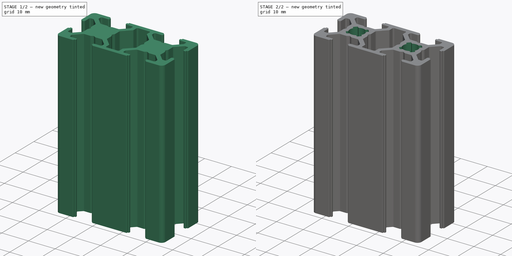
[diagram: build sequence overview — one tinted view per stage of 2, left to right]
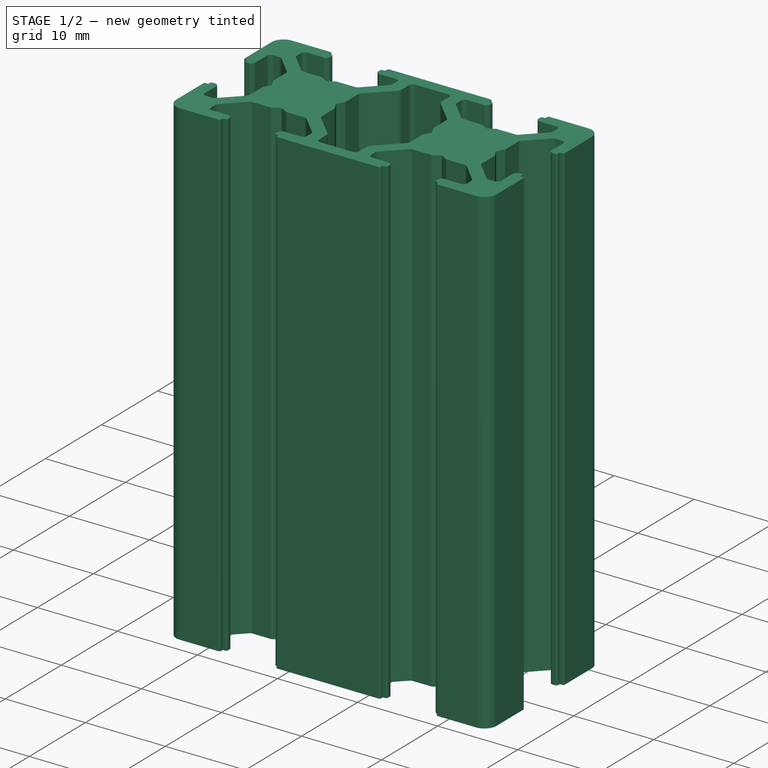
[diagram: stage 1 of 2 — iso view after this stage's code; geometry added in this stage tinted green]
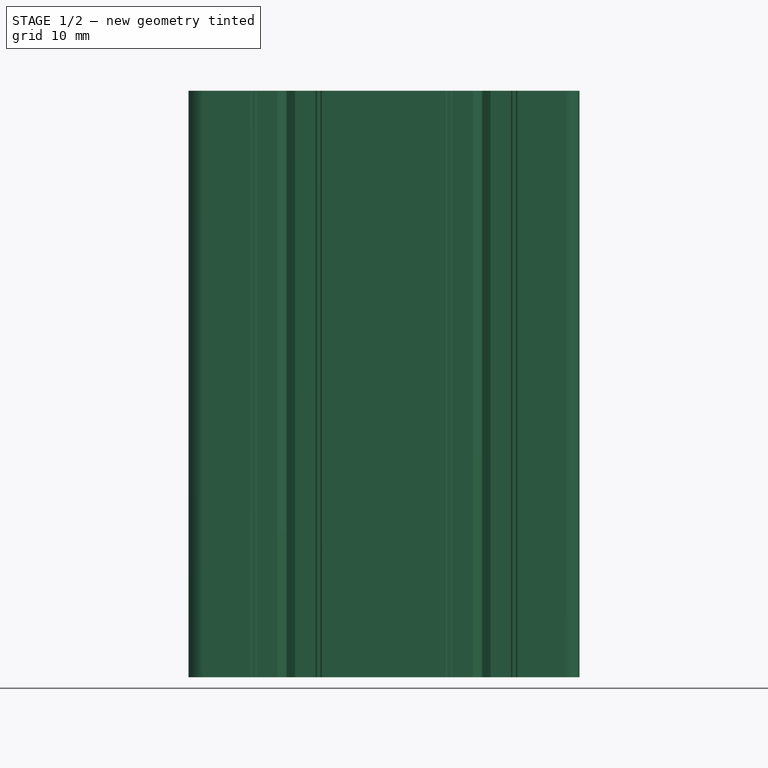
[diagram: stage 1 of 2 — front view after this stage's code; geometry added in this stage tinted green]
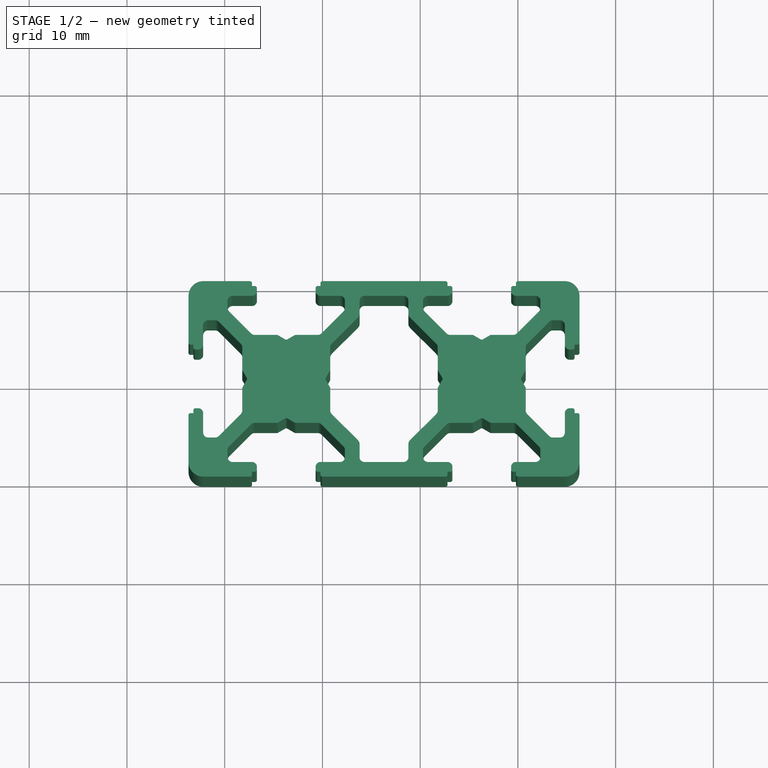
[diagram: stage 1 of 2 — top view after this stage's code; geometry added in this stage tinted green]
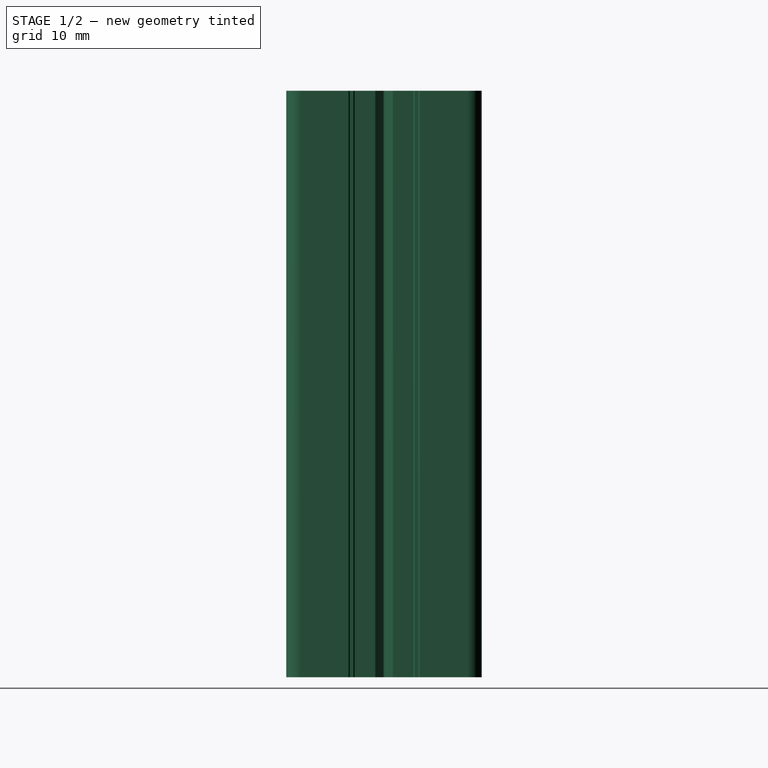
[diagram: stage 1 of 2 — right view after this stage's code; geometry added in this stage tinted green]
FCSTD DOCUMENT  (FreeCAD 0.14R3703 (Git))
Label: brazo_vertical
License: CC-BY 3.0
LicenseURL: http://creativecommons.org/licenses/by/3.0/
objects: Sketcher::SketchObject×4, PartDesign::Pocket×3, PartDesign::Pad×1, Part::Feature×1
note: 13 computed .brp shape members not serialized (recipe doc carries the construction recipe); baked Part::Feature solids carry a one-line shape summary decoded from their .brp

FEATURE [Sketcher::SketchObject] Sketch
  sketch-geometry (200):
    g0: LineSegment StartX=-13.7 StartY=1.5 StartZ=0 EndX=-13.7 EndY=6.3 EndZ=0
    g1: ArcOfCircle CenterX=-12.2 CenterY=1.5 CenterZ=0 NormalX=0 NormalY=0 NormalZ=1 Radius=1.5 StartAngle=3.14159 EndAngle=4.71239
    g2: LineSegment StartX=-7.4 StartY=0 StartZ=0 EndX=-12.2 EndY=1e-12 EndZ=0
    g3: ArcOfCircle CenterX=-7.4 CenterY=0.2 CenterZ=0 NormalX=0 NormalY=0 NormalZ=1 Radius=0.2 StartAngle=4.71239 EndAngle=6.28319
    g4: LineSegment StartX=-7.2 StartY=0.5 StartZ=0 EndX=-7.2 EndY=0.2 EndZ=0
    g5: LineSegment StartX=-6.9 StartY=0.5 StartZ=0 EndX=-7.2 EndY=0.5 EndZ=0
    g6: ArcOfCircle CenterX=-6.9 CenterY=0.7 CenterZ=0 NormalX=0 NormalY=0 NormalZ=1 Radius=0.2 StartAngle=4.71239 EndAngle=6.28319
    g7: LineSegment StartX=-6.7 StartY=1 StartZ=0 EndX=-6.7 EndY=0.7 EndZ=0
    g8: ArcOfCircle CenterX=-7.2 CenterY=1 CenterZ=0 NormalX=0 NormalY=0 NormalZ=1 Radius=0.5 StartAngle=0 EndAngle=1.5708
    g9: LineSegment StartX=-9.2 StartY=1.5 StartZ=0 EndX=-7.2 EndY=1.5 EndZ=0
    g10: ArcOfCircle CenterX=-9.2 CenterY=2 CenterZ=0 NormalX=0 NormalY=0 NormalZ=1 Radius=0.5 StartAngle=3.14159 EndAngle=4.71239
    g11: LineSegment StartX=-9.7 StartY=2.73223 StartZ=0 EndX=-9.7 EndY=2 EndZ=0
    g12: ArcOfCircle CenterX=-9.2 CenterY=2.73223 CenterZ=0 NormalX=0 NormalY=0 NormalZ=1 Radius=0.5 StartAngle=2.35619 EndAngle=3.14159
    g13: LineSegment StartX=-7.28579 StartY=5.35355 StartZ=0 EndX=-9.55355 EndY=3.08579 EndZ=0
    g14: ArcOfCircle CenterX=-6.93223 CenterY=5 CenterZ=0 NormalX=0 NormalY=0 NormalZ=1 Radius=0.5 StartAngle=1.5708 EndAngle=2.35619
    g15: LineSegment StartX=-4.65359 StartY=5.5 StartZ=0 EndX=-6.93223 EndY=5.5 EndZ=0
    g16: ArcOfCircle CenterX=-4.65359 CenterY=5.7 CenterZ=0 NormalX=0 NormalY=0 NormalZ=1 Radius=0.2 StartAngle=4.71239 EndAngle=5.23599
    g17: LineSegment StartX=-3.8 StartY=5.96188 StartZ=0 EndX=-4.55359 EndY=5.5268 EndZ=0
    g18: ArcOfCircle CenterX=-3.7 CenterY=5.78868 CenterZ=0 NormalX=0 NormalY=0 NormalZ=1 Radius=0.2 StartAngle=1.0472 EndAngle=2.0944
    g19: LineSegment StartX=-2.84641 StartY=5.5268 StartZ=0 EndX=-3.6 EndY=5.96188 EndZ=0
    g20: ArcOfCircle CenterX=-2.74641 CenterY=5.7 CenterZ=0 NormalX=0 NormalY=0 NormalZ=1 Radius=0.2 StartAngle=4.18879 EndAngle=4.71239
    g21: LineSegment StartX=-0.467767 StartY=5.5 StartZ=0 EndX=-2.74641 EndY=5.5 EndZ=0
    g22: ArcOfCircle CenterX=-0.467767 CenterY=5 CenterZ=0 NormalX=0 NormalY=0 NormalZ=1 Radius=0.5 StartAngle=0.785398 EndAngle=1.5708
    g23: LineSegment StartX=2.15355 StartY=3.08579 StartZ=0 EndX=-0.114214 EndY=5.35355 EndZ=0
    g24: ArcOfCircle CenterX=1.8 CenterY=2.73223 CenterZ=0 NormalX=0 NormalY=0 NormalZ=1 Radius=0.5 StartAngle=0 EndAngle=0.785398
    g25: LineSegment StartX=2.3 StartY=2 StartZ=0 EndX=2.3 EndY=2.73223 EndZ=0
    g26: ArcOfCircle CenterX=1.8 CenterY=2 CenterZ=0 NormalX=0 NormalY=0 NormalZ=1 Radius=0.5 StartAngle=4.71239 EndAngle=6.28319
    g27: LineSegment StartX=-0.2 StartY=1.5 StartZ=0 EndX=1.8 EndY=1.5 EndZ=0
    g28: ArcOfCircle CenterX=-0.2 CenterY=1 CenterZ=0 NormalX=0 NormalY=0 NormalZ=1 Radius=0.5 StartAngle=1.5708 EndAngle=3.14159
    g29: LineSegment StartX=-0.7 StartY=0.7 StartZ=0 EndX=-0.7 EndY=1 EndZ=0
    g30: ArcOfCircle CenterX=-0.5 CenterY=0.7 CenterZ=0 NormalX=0 NormalY=0 NormalZ=1 Radius=0.2 StartAngle=3.14159 EndAngle=4.71239
    g31: LineSegment StartX=-0.2 StartY=0.5 StartZ=0 EndX=-0.5 EndY=0.5 EndZ=0
    g32: LineSegment StartX=-0.2 StartY=0.2 StartZ=0 EndX=-0.2 EndY=0.5 EndZ=0
    g33: ArcOfCircle CenterX=5e-12 CenterY=0.2 CenterZ=0 NormalX=0 NormalY=0 NormalZ=1 Radius=0.2 StartAngle=3.14159 EndAngle=4.71239
    g34: LineSegment StartX=12.6 StartY=0 StartZ=0 EndX=0 EndY=1e-12 EndZ=0
    g35: ArcOfCircle CenterX=12.6 CenterY=0.2 CenterZ=0 NormalX=0 NormalY=0 NormalZ=1 Radius=0.2 StartAngle=4.71239 EndAngle=6.28319
    g36: LineSegment StartX=12.8 StartY=0.5 StartZ=0 EndX=12.8 EndY=0.2 EndZ=0
    g37: LineSegment StartX=13.1 StartY=0.5 StartZ=0 EndX=12.8 EndY=0.5 EndZ=0
    g38: ArcOfCircle CenterX=13.1 CenterY=0.7 CenterZ=0 NormalX=0 NormalY=0 NormalZ=1 Radius=0.2 StartAngle=4.71239 EndAngle=6.28319
    g39: LineSegment StartX=13.3 StartY=1 StartZ=0 EndX=13.3 EndY=0.7 EndZ=0
    g40: ArcOfCircle CenterX=12.8 CenterY=1 CenterZ=0 NormalX=0 NormalY=0 NormalZ=1 Radius=0.5 StartAngle=0 EndAngle=1.5708
    g41: LineSegment StartX=10.8 StartY=1.5 StartZ=0 EndX=12.8 EndY=1.5 EndZ=0
    g42: ArcOfCircle CenterX=10.8 CenterY=2 CenterZ=0 NormalX=0 NormalY=0 NormalZ=1 Radius=0.5 StartAngle=3.14159 EndAngle=4.71239
    g43: LineSegment StartX=10.3 StartY=2.73223 StartZ=0 EndX=10.3 EndY=2 EndZ=0
    g44: ArcOfCircle CenterX=10.8 CenterY=2.73223 CenterZ=0 NormalX=0 NormalY=0 NormalZ=1 Radius=0.5 StartAngle=2.35619 EndAngle=3.14159
    g45: LineSegment StartX=12.7142 StartY=5.35355 StartZ=0 EndX=10.4464 EndY=3.08579 EndZ=0
    g46: ArcOfCircle CenterX=13.0678 CenterY=5 CenterZ=0 NormalX=0 NormalY=0 NormalZ=1 Radius=0.5 StartAngle=1.5708 EndAngle=2.35619
    g47: LineSegment StartX=15.3464 StartY=5.5 StartZ=0 EndX=13.0678 EndY=5.5 EndZ=0
    g48: ArcOfCircle CenterX=15.3464 CenterY=5.7 CenterZ=0 NormalX=0 NormalY=0 NormalZ=1 Radius=0.2 StartAngle=4.71239 EndAngle=5.23599
    g49: LineSegment StartX=16.2 StartY=5.96188 StartZ=0 EndX=15.4464 EndY=5.5268 EndZ=0
    g50: ArcOfCircle CenterX=16.3 CenterY=5.78868 CenterZ=0 NormalX=0 NormalY=0 NormalZ=1 Radius=0.2 StartAngle=1.0472 EndAngle=2.0944
    g51: LineSegment StartX=17.1536 StartY=5.5268 StartZ=0 EndX=16.4 EndY=5.96188 EndZ=0
    g52: ArcOfCircle CenterX=17.2536 CenterY=5.7 CenterZ=0 NormalX=0 NormalY=0 NormalZ=1 Radius=0.2 StartAngle=4.18879 EndAngle=4.71239
    g53: LineSegment StartX=19.5322 StartY=5.5 StartZ=0 EndX=17.2536 EndY=5.5 EndZ=0
    g54: ArcOfCircle CenterX=19.5322 CenterY=5 CenterZ=0 NormalX=0 NormalY=0 NormalZ=1 Radius=0.5 StartAngle=0.785398 EndAngle=1.5708
    g55: LineSegment StartX=22.1536 StartY=3.08579 StartZ=0 EndX=19.8858 EndY=5.35355 EndZ=0
    g56: ArcOfCircle CenterX=21.8 CenterY=2.73223 CenterZ=0 NormalX=0 NormalY=0 NormalZ=1 Radius=0.5 StartAngle=0 EndAngle=0.785398
    g57: LineSegment StartX=22.3 StartY=2 StartZ=0 EndX=22.3 EndY=2.73223 EndZ=0
    g58: ArcOfCircle CenterX=21.8 CenterY=2 CenterZ=0 NormalX=0 NormalY=0 NormalZ=1 Radius=0.5 StartAngle=4.71239 EndAngle=6.28319
    g59: LineSegment StartX=19.8 StartY=1.5 StartZ=0 EndX=21.8 EndY=1.5 EndZ=0
    g60: ArcOfCircle CenterX=19.8 CenterY=1 CenterZ=0 NormalX=0 NormalY=0 NormalZ=1 Radius=0.5 StartAngle=1.5708 EndAngle=3.14159
    g61: LineSegment StartX=19.3 StartY=0.7 StartZ=0 EndX=19.3 EndY=1 EndZ=0
    g62: ArcOfCircle CenterX=19.5 CenterY=0.7 CenterZ=0 NormalX=0 NormalY=0 NormalZ=1 Radius=0.2 StartAngle=3.14159 EndAngle=4.71239
    g63: LineSegment StartX=19.8 StartY=0.5 StartZ=0 EndX=19.5 EndY=0.5 EndZ=0
    g64: LineSegment StartX=19.8 StartY=0.2 StartZ=0 EndX=19.8 EndY=0.5 EndZ=0
    g65: ArcOfCircle CenterX=20 CenterY=0.2 CenterZ=0 NormalX=0 NormalY=0 NormalZ=1 Radius=0.2 StartAngle=3.14159 EndAngle=4.71239
    g66: LineSegment StartX=24.8 StartY=0 StartZ=0 EndX=20 EndY=1e-12 EndZ=0
    g67: ArcOfCircle CenterX=24.8 CenterY=1.5 CenterZ=0 NormalX=0 NormalY=0 NormalZ=1 Radius=1.5 StartAngle=4.71239 EndAngle=6.28319
    g68: LineSegment StartX=26.3 StartY=6.3 StartZ=0 EndX=26.3 EndY=1.5 EndZ=0
    g69: ArcOfCircle CenterX=26.1 CenterY=6.3 CenterZ=0 NormalX=0 NormalY=0 NormalZ=1 Radius=0.2 StartAngle=0 EndAngle=1.5708
    g70: LineSegment StartX=25.8 StartY=6.5 StartZ=0 EndX=26.1 EndY=6.5 EndZ=0
    g71: LineSegment StartX=25.8 StartY=6.8 StartZ=0 EndX=25.8 EndY=6.5 EndZ=0
    g72: ArcOfCircle CenterX=25.6 CenterY=6.8 CenterZ=0 NormalX=0 NormalY=0 NormalZ=1 Radius=0.2 StartAngle=0 EndAngle=1.5708
    g73: LineSegment StartX=25.3 StartY=7 StartZ=0 EndX=25.6 EndY=7 EndZ=0
    g74: ArcOfCircle CenterX=25.3 CenterY=6.5 CenterZ=0 NormalX=0 NormalY=0 NormalZ=1 Radius=0.5 StartAngle=1.5708 EndAngle=3.14159
    g75: LineSegment StartX=24.8 StartY=4.5 StartZ=0 EndX=24.8 EndY=6.5 EndZ=0
    g76: ArcOfCircle CenterX=24.3 CenterY=4.5 CenterZ=0 NormalX=0 NormalY=0 NormalZ=1 Radius=0.5 StartAngle=4.71239 EndAngle=6.28319
    g77: LineSegment StartX=23.5678 StartY=4 StartZ=0 EndX=24.3 EndY=4 EndZ=0
    g78: ArcOfCircle CenterX=23.5678 CenterY=4.5 CenterZ=0 NormalX=0 NormalY=0 NormalZ=1 Radius=0.5 StartAngle=3.92699 EndAngle=4.71239
    g79: LineSegment StartX=20.9464 StartY=6.41421 StartZ=0 EndX=23.2142 EndY=4.14645 EndZ=0
    g80: ArcOfCircle CenterX=21.3 CenterY=6.76777 CenterZ=0 NormalX=0 NormalY=0 NormalZ=1 Radius=0.5 StartAngle=3.14159 EndAngle=3.92699
    g81: LineSegment StartX=20.8 StartY=9.04641 StartZ=0 EndX=20.8 EndY=6.76777 EndZ=0
    g82: ArcOfCircle CenterX=20.6 CenterY=9.04641 CenterZ=0 NormalX=0 NormalY=0 NormalZ=1 Radius=0.2 StartAngle=0 EndAngle=0.523599
    g83: LineSegment StartX=20.3381 StartY=9.9 StartZ=0 EndX=20.7732 EndY=9.14641 EndZ=0
    g84: ArcOfCircle CenterX=20.5113 CenterY=10 CenterZ=0 NormalX=0 NormalY=0 NormalZ=1 Radius=0.2 StartAngle=2.61799 EndAngle=3.66519
    g85: LineSegment StartX=20.7732 StartY=10.8536 StartZ=0 EndX=20.3381 EndY=10.1 EndZ=0
    g86: ArcOfCircle CenterX=20.6 CenterY=10.9536 CenterZ=0 NormalX=0 NormalY=0 NormalZ=1 Radius=0.2 StartAngle=5.75959 EndAngle=6.28319
    g87: LineSegment StartX=20.8 StartY=13.2322 StartZ=0 EndX=20.8 EndY=10.9536 EndZ=0
    g88: ArcOfCircle CenterX=21.3 CenterY=13.2322 CenterZ=0 NormalX=0 NormalY=0 NormalZ=1 Radius=0.5 StartAngle=2.35619 EndAngle=3.14159
    g89: LineSegment StartX=23.2142 StartY=15.8536 StartZ=0 EndX=20.9464 EndY=13.5858 EndZ=0
    g90: ArcOfCircle CenterX=23.5678 CenterY=15.5 CenterZ=0 NormalX=0 NormalY=0 NormalZ=1 Radius=0.5 StartAngle=1.5708 EndAngle=2.35619
    g91: LineSegment StartX=24.3 StartY=16 StartZ=0 EndX=23.5678 EndY=16 EndZ=0
    g92: ArcOfCircle CenterX=24.3 CenterY=15.5 CenterZ=0 NormalX=0 NormalY=0 NormalZ=1 Radius=0.5 StartAngle=0 EndAngle=1.5708
    g93: LineSegment StartX=24.8 StartY=13.5 StartZ=0 EndX=24.8 EndY=15.5 EndZ=0
    g94: ArcOfCircle CenterX=25.3 CenterY=13.5 CenterZ=0 NormalX=0 NormalY=0 NormalZ=1 Radius=0.5 StartAngle=3.14159 EndAngle=4.71239
    g95: LineSegment StartX=25.6 StartY=13 StartZ=0 EndX=25.3 EndY=13 EndZ=0
    g96: ArcOfCircle CenterX=25.6 CenterY=13.2 CenterZ=0 NormalX=0 NormalY=0 NormalZ=1 Radius=0.2 StartAngle=4.71239 EndAngle=6.28319
    g97: LineSegment StartX=25.8 StartY=13.5 StartZ=0 EndX=25.8 EndY=13.2 EndZ=0
    g98: LineSegment StartX=26.1 StartY=13.5 StartZ=0 EndX=25.8 EndY=13.5 EndZ=0
    g99: ArcOfCircle CenterX=26.1 CenterY=13.7 CenterZ=0 NormalX=0 NormalY=0 NormalZ=1 Radius=0.2 StartAngle=4.71239 EndAngle=6.28319
    g100: LineSegment StartX=26.3 StartY=18.5 StartZ=0 EndX=26.3 EndY=13.7 EndZ=0
    g101: ArcOfCircle CenterX=24.8 CenterY=18.5 CenterZ=0 NormalX=0 NormalY=0 NormalZ=1 Radius=1.5 StartAngle=0 EndAngle=1.5708
    g102: LineSegment StartX=20 StartY=20 StartZ=0 EndX=24.8 EndY=20 EndZ=0
    g103: ArcOfCircle CenterX=20 CenterY=19.8 CenterZ=0 NormalX=0 NormalY=0 NormalZ=1 Radius=0.2 StartAngle=1.5708 EndAngle=3.14159
    g104: LineSegment StartX=19.8 StartY=19.5 StartZ=0 EndX=19.8 EndY=19.8 EndZ=0
    g105: LineSegment StartX=19.5 StartY=19.5 StartZ=0 EndX=19.8 EndY=19.5 EndZ=0
    g106: ArcOfCircle CenterX=19.5 CenterY=19.3 CenterZ=0 NormalX=0 NormalY=0 NormalZ=1 Radius=0.2 StartAngle=1.5708 EndAngle=3.14159
    g107: LineSegment StartX=19.3 StartY=19 StartZ=0 EndX=19.3 EndY=19.3 EndZ=0
    g108: ArcOfCircle CenterX=19.8 CenterY=19 CenterZ=0 NormalX=0 NormalY=0 NormalZ=1 Radius=0.5 StartAngle=3.14159 EndAngle=4.71239
    g109: LineSegment StartX=21.8 StartY=18.5 StartZ=0 EndX=19.8 EndY=18.5 EndZ=0
    g110: ArcOfCircle CenterX=21.8 CenterY=18 CenterZ=0 NormalX=0 NormalY=0 NormalZ=1 Radius=0.5 StartAngle=0 EndAngle=1.5708
    g111: LineSegment StartX=22.3 StartY=17.2678 StartZ=0 EndX=22.3 EndY=18 EndZ=0
    g112: ArcOfCircle CenterX=21.8 CenterY=17.2678 CenterZ=0 NormalX=0 NormalY=0 NormalZ=1 Radius=0.5 StartAngle=5.49779 EndAngle=6.28319
    g113: LineSegment StartX=19.8858 StartY=14.6464 StartZ=0 EndX=22.1536 EndY=16.9142 EndZ=0
    g114: ArcOfCircle CenterX=19.5322 CenterY=15 CenterZ=0 NormalX=0 NormalY=0 NormalZ=1 Radius=0.5 StartAngle=4.71239 EndAngle=5.49779
    g115: LineSegment StartX=17.2536 StartY=14.5 StartZ=0 EndX=19.5322 EndY=14.5 EndZ=0
    g116: ArcOfCircle CenterX=17.2536 CenterY=14.3 CenterZ=0 NormalX=0 NormalY=0 NormalZ=1 Radius=0.2 StartAngle=1.5708 EndAngle=2.0944
    g117: LineSegment StartX=16.4 StartY=14.0381 StartZ=0 EndX=17.1536 EndY=14.4732 EndZ=0
    g118: ArcOfCircle CenterX=16.3 CenterY=14.2113 CenterZ=0 NormalX=0 NormalY=0 NormalZ=1 Radius=0.2 StartAngle=4.18879 EndAngle=5.23599
    g119: LineSegment StartX=15.4464 StartY=14.4732 StartZ=0 EndX=16.2 EndY=14.0381 EndZ=0
    g120: ArcOfCircle CenterX=15.3464 CenterY=14.3 CenterZ=0 NormalX=0 NormalY=0 NormalZ=1 Radius=0.2 StartAngle=1.0472 EndAngle=1.5708
    g121: LineSegment StartX=13.0678 StartY=14.5 StartZ=0 EndX=15.3464 EndY=14.5 EndZ=0
    g122: ArcOfCircle CenterX=13.0678 CenterY=15 CenterZ=0 NormalX=0 NormalY=0 NormalZ=1 Radius=0.5 StartAngle=3.92699 EndAngle=4.71239
    g123: LineSegment StartX=10.4464 StartY=16.9142 StartZ=0 EndX=12.7142 EndY=14.6464 EndZ=0
    g124: ArcOfCircle CenterX=10.8 CenterY=17.2678 CenterZ=0 NormalX=0 NormalY=0 NormalZ=1 Radius=0.5 StartAngle=3.14159 EndAngle=3.92699
    g125: LineSegment StartX=10.3 StartY=18 StartZ=0 EndX=10.3 EndY=17.2678 EndZ=0
    g126: ArcOfCircle CenterX=10.8 CenterY=18 CenterZ=0 NormalX=0 NormalY=0 NormalZ=1 Radius=0.5 StartAngle=1.5708 EndAngle=3.14159
    g127: LineSegment StartX=12.8 StartY=18.5 StartZ=0 EndX=10.8 EndY=18.5 EndZ=0
    g128: ArcOfCircle CenterX=12.8 CenterY=19 CenterZ=0 NormalX=0 NormalY=0 NormalZ=1 Radius=0.5 StartAngle=4.71239 EndAngle=6.28319
    g129: LineSegment StartX=13.3 StartY=19.3 StartZ=0 EndX=13.3 EndY=19 EndZ=0
    g130: ArcOfCircle CenterX=13.1 CenterY=19.3 CenterZ=0 NormalX=0 NormalY=0 NormalZ=1 Radius=0.2 StartAngle=0 EndAngle=1.5708
    g131: LineSegment StartX=12.8 StartY=19.5 StartZ=0 EndX=13.1 EndY=19.5 EndZ=0
    g132: LineSegment StartX=12.8 StartY=19.8 StartZ=0 EndX=12.8 EndY=19.5 EndZ=0
    g133: ArcOfCircle CenterX=12.6 CenterY=19.8 CenterZ=0 NormalX=0 NormalY=0 NormalZ=1 Radius=0.2 StartAngle=0 EndAngle=1.5708
    g134: LineSegment StartX=0 StartY=20 StartZ=0 EndX=12.6 EndY=20 EndZ=0
    g135: ArcOfCircle CenterX=0 CenterY=19.8 CenterZ=0 NormalX=0 NormalY=0 NormalZ=1 Radius=0.2 StartAngle=1.5708 EndAngle=3.14159
    g136: LineSegment StartX=-0.2 StartY=19.5 StartZ=0 EndX=-0.2 EndY=19.8 EndZ=0
    g137: LineSegment StartX=-0.5 StartY=19.5 StartZ=0 EndX=-0.2 EndY=19.5 EndZ=0
    g138: ArcOfCircle CenterX=-0.5 CenterY=19.3 CenterZ=0 NormalX=0 NormalY=0 NormalZ=1 Radius=0.2 StartAngle=1.5708 EndAngle=3.14159
    g139: LineSegment StartX=-0.7 StartY=19 StartZ=0 EndX=-0.7 EndY=19.3 EndZ=0
    g140: ArcOfCircle CenterX=-0.2 CenterY=19 CenterZ=0 NormalX=0 NormalY=0 NormalZ=1 Radius=0.5 StartAngle=3.14159 EndAngle=4.71239
    g141: LineSegment StartX=1.8 StartY=18.5 StartZ=0 EndX=-0.2 EndY=18.5 EndZ=0
    g142: ArcOfCircle CenterX=1.8 CenterY=18 CenterZ=0 NormalX=0 NormalY=0 NormalZ=1 Radius=0.5 StartAngle=0 EndAngle=1.5708
    g143: LineSegment StartX=2.3 StartY=17.2678 StartZ=0 EndX=2.3 EndY=18 EndZ=0
    g144: ArcOfCircle CenterX=1.8 CenterY=17.2678 CenterZ=0 NormalX=0 NormalY=0 NormalZ=1 Radius=0.5 StartAngle=5.49779 EndAngle=6.28319
    g145: LineSegment StartX=-0.114214 StartY=14.6464 StartZ=0 EndX=2.15355 EndY=16.9142 EndZ=0
    g146: ArcOfCircle CenterX=-0.467767 CenterY=15 CenterZ=0 NormalX=0 NormalY=0 NormalZ=1 Radius=0.5 StartAngle=4.71239 EndAngle=5.49779
    g147: LineSegment StartX=-2.74641 StartY=14.5 StartZ=0 EndX=-0.467767 EndY=14.5 EndZ=0
    g148: ArcOfCircle CenterX=-2.74641 CenterY=14.3 CenterZ=0 NormalX=0 NormalY=0 NormalZ=1 Radius=0.2 StartAngle=1.5708 EndAngle=2.0944
    g149: LineSegment StartX=-3.6 StartY=14.0381 StartZ=0 EndX=-2.84641 EndY=14.4732 EndZ=0
    g150: ArcOfCircle CenterX=-3.7 CenterY=14.2113 CenterZ=0 NormalX=0 NormalY=0 NormalZ=1 Radius=0.2 StartAngle=4.18879 EndAngle=5.23599
    g151: LineSegment StartX=-4.55359 StartY=14.4732 StartZ=0 EndX=-3.8 EndY=14.0381 EndZ=0
    g152: ArcOfCircle CenterX=-4.65359 CenterY=14.3 CenterZ=0 NormalX=0 NormalY=0 NormalZ=1 Radius=0.2 StartAngle=1.0472 EndAngle=1.5708
    g153: LineSegment StartX=-6.93223 StartY=14.5 StartZ=0 EndX=-4.65359 EndY=14.5 EndZ=0
    g154: ArcOfCircle CenterX=-6.93223 CenterY=15 CenterZ=0 NormalX=0 NormalY=0 NormalZ=1 Radius=0.5 StartAngle=3.92699 EndAngle=4.71239
    g155: LineSegment StartX=-9.55355 StartY=16.9142 StartZ=0 EndX=-7.28579 EndY=14.6464 EndZ=0
    g156: ArcOfCircle CenterX=-9.2 CenterY=17.2678 CenterZ=0 NormalX=0 NormalY=0 NormalZ=1 Radius=0.5 StartAngle=3.14159 EndAngle=3.92699
    g157: LineSegment StartX=-9.7 StartY=18 StartZ=0 EndX=-9.7 EndY=17.2678 EndZ=0
    g158: ArcOfCircle CenterX=-9.2 CenterY=18 CenterZ=0 NormalX=0 NormalY=0 NormalZ=1 Radius=0.5 StartAngle=1.5708 EndAngle=3.14159
    g159: LineSegment StartX=-7.2 StartY=18.5 StartZ=0 EndX=-9.2 EndY=18.5 EndZ=0
    g160: ArcOfCircle CenterX=-7.2 CenterY=19 CenterZ=0 NormalX=0 NormalY=0 NormalZ=1 Radius=0.5 StartAngle=4.71239 EndAngle=6.28319
    g161: LineSegment StartX=-6.7 StartY=19.3 StartZ=0 EndX=-6.7 EndY=19 EndZ=0
    g162: ArcOfCircle CenterX=-6.9 CenterY=19.3 CenterZ=0 NormalX=0 NormalY=0 NormalZ=1 Radius=0.2 StartAngle=0 EndAngle=1.5708
    g163: LineSegment StartX=-7.2 StartY=19.5 StartZ=0 EndX=-6.9 EndY=19.5 EndZ=0
    g164: LineSegment StartX=-7.2 StartY=19.8 StartZ=0 EndX=-7.2 EndY=19.5 EndZ=0
    g165: ArcOfCircle CenterX=-7.4 CenterY=19.8 CenterZ=0 NormalX=0 NormalY=0 NormalZ=1 Radius=0.2 StartAngle=0 EndAngle=1.5708
    g166: LineSegment StartX=-12.2 StartY=20 StartZ=0 EndX=-7.4 EndY=20 EndZ=0
    g167: ArcOfCircle CenterX=-12.2 CenterY=18.5 CenterZ=0 NormalX=0 NormalY=0 NormalZ=1 Radius=1.5 StartAngle=1.5708 EndAngle=3.14159
    g168: LineSegment StartX=-13.7 StartY=13.7 StartZ=0 EndX=-13.7 EndY=18.5 EndZ=0
    g169: ArcOfCircle CenterX=-13.5 CenterY=13.7 CenterZ=0 NormalX=0 NormalY=0 NormalZ=1 Radius=0.2 StartAngle=3.14159 EndAngle=4.71239
    g170: LineSegment StartX=-13.2 StartY=13.5 StartZ=0 EndX=-13.5 EndY=13.5 EndZ=0
    g171: LineSegment StartX=-13.2 StartY=13.2 StartZ=0 EndX=-13.2 EndY=13.5 EndZ=0
    g172: ArcOfCircle CenterX=-13 CenterY=13.2 CenterZ=0 NormalX=0 NormalY=0 NormalZ=1 Radius=0.2 StartAngle=3.14159 EndAngle=4.71239
    g173: LineSegment StartX=-12.7 StartY=13 StartZ=0 EndX=-13 EndY=13 EndZ=0
    g174: ArcOfCircle CenterX=-12.7 CenterY=13.5 CenterZ=0 NormalX=0 NormalY=0 NormalZ=1 Radius=0.5 StartAngle=4.71239 EndAngle=6.28319
    g175: LineSegment StartX=-12.2 StartY=15.5 StartZ=0 EndX=-12.2 EndY=13.5 EndZ=0
    g176: ArcOfCircle CenterX=-11.7 CenterY=15.5 CenterZ=0 NormalX=0 NormalY=0 NormalZ=1 Radius=0.5 StartAngle=1.5708 EndAngle=3.14159
    g177: LineSegment StartX=-10.9678 StartY=16 StartZ=0 EndX=-11.7 EndY=16 EndZ=0
    g178: ArcOfCircle CenterX=-10.9678 CenterY=15.5 CenterZ=0 NormalX=0 NormalY=0 NormalZ=1 Radius=0.5 StartAngle=0.785398 EndAngle=1.5708
    g179: LineSegment StartX=-8.34645 StartY=13.5858 StartZ=0 EndX=-10.6142 EndY=15.8536 EndZ=0
    g180: ArcOfCircle CenterX=-8.7 CenterY=13.2322 CenterZ=0 NormalX=0 NormalY=0 NormalZ=1 Radius=0.5 StartAngle=0 EndAngle=0.785398
    g181: LineSegment StartX=-8.2 StartY=10.9536 StartZ=0 EndX=-8.2 EndY=13.2322 EndZ=0
    g182: ArcOfCircle CenterX=-8 CenterY=10.9536 CenterZ=0 NormalX=0 NormalY=0 NormalZ=1 Radius=0.2 StartAngle=3.14159 EndAngle=3.66519
    g183: LineSegment StartX=-7.73812 StartY=10.1 StartZ=0 EndX=-8.1732 EndY=10.8536 EndZ=0
    g184: ArcOfCircle CenterX=-7.91132 CenterY=10 CenterZ=0 NormalX=0 NormalY=0 NormalZ=1 Radius=0.2 StartAngle=5.75959 EndAngle=6.80678
    g185: LineSegment StartX=-8.1732 StartY=9.14641 StartZ=0 EndX=-7.73812 EndY=9.9 EndZ=0
    g186: ArcOfCircle CenterX=-8 CenterY=9.04641 CenterZ=0 NormalX=0 NormalY=0 NormalZ=1 Radius=0.2 StartAngle=2.61799 EndAngle=3.14159
    g187: LineSegment StartX=-8.2 StartY=6.76777 StartZ=0 EndX=-8.2 EndY=9.04641 EndZ=0
    g188: ArcOfCircle CenterX=-8.7 CenterY=6.76777 CenterZ=0 NormalX=0 NormalY=0 NormalZ=1 Radius=0.5 StartAngle=5.49779 EndAngle=6.28319
    g189: LineSegment StartX=-10.6142 StartY=4.14645 StartZ=0 EndX=-8.34645 EndY=6.41421 EndZ=0
    g190: ArcOfCircle CenterX=-10.9678 CenterY=4.5 CenterZ=0 NormalX=0 NormalY=0 NormalZ=1 Radius=0.5 StartAngle=4.71239 EndAngle=5.49779
    g191: LineSegment StartX=-11.7 StartY=4 StartZ=0 EndX=-10.9678 EndY=4 EndZ=0
    g192: ArcOfCircle CenterX=-11.7 CenterY=4.5 CenterZ=0 NormalX=0 NormalY=0 NormalZ=1 Radius=0.5 StartAngle=3.14159 EndAngle=4.71239
    g193: LineSegment StartX=-12.2 StartY=6.5 StartZ=0 EndX=-12.2 EndY=4.5 EndZ=0
    g194: ArcOfCircle CenterX=-12.7 CenterY=6.5 CenterZ=0 NormalX=0 NormalY=0 NormalZ=1 Radius=0.5 StartAngle=0 EndAngle=1.5708
    g195: LineSegment StartX=-13 StartY=7 StartZ=0 EndX=-12.7 EndY=7 EndZ=0
    g196: ArcOfCircle CenterX=-13 CenterY=6.8 CenterZ=0 NormalX=0 NormalY=0 NormalZ=1 Radius=0.2 StartAngle=1.5708 EndAngle=3.14159
    g197: LineSegment StartX=-13.2 StartY=6.5 StartZ=0 EndX=-13.2 EndY=6.8 EndZ=0
    g198: LineSegment StartX=-13.5 StartY=6.5 StartZ=0 EndX=-13.2 EndY=6.5 EndZ=0
    g199: ArcOfCircle CenterX=-13.5 CenterY=6.3 CenterZ=0 NormalX=0 NormalY=0 NormalZ=1 Radius=0.2 StartAngle=1.5708 EndAngle=3.14159
  constraints (200):
    c: Coincident(g0,g1)
    c: Coincident(g199,g0)
    c: Coincident(g1,g2)
    c: Coincident(g2,g3)
    c: Coincident(g3,g4)
    c: Coincident(g4,g5)
    c: Coincident(g5,g6)
    c: Coincident(g7,g6)
    c: Coincident(g7,g8)
    c: Coincident(g9,g8)
    c: Coincident(g9,g10)
    c: Coincident(g10,g11)
    c: Coincident(g12,g11)
    c: Coincident(g13,g12)
    c: Coincident(g13,g14)
    c: Coincident(g14,g15)
    c: Coincident(g16,g15)
    c: Coincident(g16,g17)
    c: Coincident(g17,g18)
    c: Coincident(g19,g18)
    c: Coincident(g19,g20)
    c: Coincident(g21,g20)
    c: Coincident(g21,g22)
    c: Coincident(g22,g23)
    c: Coincident(g24,g23)
    c: Coincident(g25,g24)
    c: Coincident(g25,g26)
    c: Coincident(g27,g26)
    c: Coincident(g27,g28)
    c: Coincident(g29,g28)
    c: Coincident(g30,g29)
    c: Coincident(g30,g31)
    c: Coincident(g31,g32)
    c: Coincident(g32,g33)
    c: Coincident(g34,g33)
    c: Coincident(g34,g35)
    c: Coincident(g35,g36)
    c: Coincident(g36,g37)
    c: Coincident(g38,g37)
    c: Coincident(g38,g39)
    c: Coincident(g39,g40)
    c: Coincident(g40,g41)
    c: Coincident(g42,g41)
    c: Coincident(g43,g42)
    c: Coincident(g44,g43)
    c: Coincident(g45,g44)
    c: Coincident(g46,g45)
    c: Coincident(g47,g46)
    c: Coincident(g48,g47)
    c: Coincident(g48,g49)
    c: Coincident(g49,g50)
    c: Coincident(g50,g51)
    c: Coincident(g51,g52)
    c: Coincident(g52,g53)
    c: Coincident(g53,g54)
    c: Coincident(g54,g55)
    c: Coincident(g56,g55)
    c: Coincident(g56,g57)
    c: Coincident(g57,g58)
    c: Coincident(g58,g59)
    c: Coincident(g59,g60)
    c: Coincident(g61,g60)
    c: Coincident(g62,g61)
    c: Coincident(g63,g62)
    c: Coincident(g64,g63)
    c: Coincident(g64,g65)
    c: Coincident(g66,g65)
    c: Coincident(g66,g67)
    c: Coincident(g67,g68)
    c: Coincident(g68,g69)
    c: Coincident(g69,g70)
    c: Coincident(g71,g70)
    c: Coincident(g71,g72)
    c: Coincident(g73,g72)
    c: Coincident(g74,g73)
    c: Coincident(g75,g74)
    c: Coincident(g75,g76)
    c: Coincident(g77,g76)
    c: Coincident(g77,g78)
    c: Coincident(g79,g78)
    c: Coincident(g80,g79)
    c: Coincident(g80,g81)
    c: Coincident(g81,g82)
    c: Coincident(g82,g83)
    c: Coincident(g83,g84)
    c: Coincident(g84,g85)
    c: Coincident(g86,g85)
    c: Coincident(g87,g86)
    c: Coincident(g88,g87)
    c: Coincident(g88,g89)
    c: Coincident(g89,g90)
    c: Coincident(g90,g91)
    c: Coincident(g91,g92)
    c: Coincident(g92,g93)
    c: Coincident(g93,g94)
    c: Coincident(g94,g95)
    c: Coincident(g95,g96)
    c: Coincident(g96,g97)
    c: Coincident(g97,g98)
    c: Coincident(g99,g98)
    c: Coincident(g99,g100)
    c: Coincident(g100,g101)
    c: Coincident(g102,g101)
    c: Coincident(g103,g102)
    c: Coincident(g103,g104)
    c: Coincident(g104,g105)
    c: Coincident(g106,g105)
    c: Coincident(g106,g107)
    c: Coincident(g107,g108)
    c: Coincident(g109,g108)
    c: Coincident(g109,g110)
    c: Coincident(g111,g110)
    c: Coincident(g112,g111)
    c: Coincident(g113,g112)
    c: Coincident(g114,g113)
    c: Coincident(g114,g115)
    c: Coincident(g115,g116)
    c: Coincident(g117,g116)
    c: Coincident(g118,g117)
    c: Coincident(g118,g119)
    c: Coincident(g120,g119)
    c: Coincident(g121,g120)
    c: Coincident(g122,g121)
    c: Coincident(g122,g123)
    c: Coincident(g123,g124)
    c: Coincident(g125,g124)
    c: Coincident(g126,g125)
    c: Coincident(g127,g126)
    c: Coincident(g127,g128)
    c: Coincident(g129,g128)
    c: Coincident(g129,g130)
    c: Coincident(g130,g131)
    c: Coincident(g132,g131)
    c: Coincident(g133,g132)
    c: Coincident(g134,g133)
    c: Coincident(g135,g134)
    c: Coincident(g136,g135)
    c: Coincident(g137,g136)
    c: Coincident(g137,g138)
    c: Coincident(g139,g138)
    c: Coincident(g139,g140)
    c: Coincident(g140,g141)
    c: Coincident(g141,g142)
    c: Coincident(g142,g143)
    c: Coincident(g143,g144)
    c: Coincident(g145,g144)
    c: Coincident(g145,g146)
    c: Coincident(g146,g147)
    c: Coincident(g147,g148)
    c: Coincident(g149,g148)
    c: Coincident(g150,g149)
    c: Coincident(g150,g151)
    c: Coincident(g151,g152)
    c: Coincident(g153,g152)
    c: Coincident(g153,g154)
    c: Coincident(g155,g154)
    c: Coincident(g155,g156)
    c: Coincident(g156,g157)
    c: Coincident(g158,g157)
    c: Coincident(g159,g158)
    c: Coincident(g160,g159)
    c: Coincident(g161,g160)
    c: Coincident(g162,g161)
    c: Coincident(g162,g163)
    c: Coincident(g163,g164)
    c: Coincident(g164,g165)
    c: Coincident(g166,g165)
    c: Coincident(g167,g166)
    c: Coincident(g167,g168)
    c: Coincident(g168,g169)
    c: Coincident(g169,g170)
    c: Coincident(g171,g170)
    c: Coincident(g172,g171)
    c: Coincident(g173,g172)
    c: Coincident(g174,g173)
    c: Coincident(g174,g175)
    c: Coincident(g175,g176)
    c: Coincident(g176,g177)
    c: Coincident(g177,g178)
    c: Coincident(g178,g179)
    c: Coincident(g180,g179)
    c: Coincident(g180,g181)
    c: Coincident(g181,g182)
    c: Coincident(g182,g183)
    c: Coincident(g184,g183)
    c: Coincident(g185,g184)
    c: Coincident(g185,g186)
    c: Coincident(g187,g186)
    c: Coincident(g188,g187)
    c: Coincident(g188,g189)
    c: Coincident(g190,g189)
    c: Coincident(g191,g190)
    c: Coincident(g192,g191)
    c: Coincident(g192,g193)
    c: Coincident(g194,g193)
    c: Coincident(g194,g195)
    c: Coincident(g195,g196)
    c: Coincident(g197,g196)
    c: Coincident(g198,g197)
    c: Coincident(g199,g198)
FEATURE [PartDesign::Pad] Pad
  Length = 60
  Length2 = 100
  Sketch = -> Sketch
  Type = 0
FEATURE [Sketcher::SketchObject] Sketch001
  Placement = pos=(0,0,60) rot=(0,0,1;0rad)
  Support = -> Pad [Face202]
  sketch-geometry (36):
    g0: ArcOfCircle CenterX=3.3 CenterY=3.35355 CenterZ=0 NormalX=0 NormalY=0 NormalZ=1 Radius=0.5 StartAngle=0 EndAngle=0.785398
    g1: LineSegment StartX=3.65355 StartY=3.70711 StartZ=0 EndX=0.946447 EndY=6.41421 EndZ=0
    g2: ArcOfCircle CenterX=1.3 CenterY=6.76777 CenterZ=0 NormalX=0 NormalY=0 NormalZ=1 Radius=0.5 StartAngle=3.14159 EndAngle=3.92699
    g3: LineSegment StartX=0.8 StartY=6.76777 StartZ=0 EndX=0.8 EndY=9.04641 EndZ=0
    g4: ArcOfCircle CenterX=0.6 CenterY=9.04641 CenterZ=0 NormalX=0 NormalY=0 NormalZ=1 Radius=0.2 StartAngle=0 EndAngle=0.523599
    g5: LineSegment StartX=0.773205 StartY=9.14641 StartZ=0 EndX=0.33812 EndY=9.9 EndZ=0
    g6: ArcOfCircle CenterX=0.511325 CenterY=10 CenterZ=0 NormalX=0 NormalY=0 NormalZ=1 Radius=0.2 StartAngle=2.61799 EndAngle=3.66519
    g7: LineSegment StartX=0.33812 StartY=10.1 StartZ=0 EndX=0.773205 EndY=10.8536 EndZ=0
    g8: ArcOfCircle CenterX=0.6 CenterY=10.9536 CenterZ=0 NormalX=0 NormalY=0 NormalZ=1 Radius=0.2 StartAngle=5.75959 EndAngle=6.28319
    g9: LineSegment StartX=0.8 StartY=10.9536 StartZ=0 EndX=0.8 EndY=13.2322 EndZ=0
    g10: ArcOfCircle CenterX=1.3 CenterY=13.2322 CenterZ=0 NormalX=0 NormalY=0 NormalZ=1 Radius=0.5 StartAngle=2.35619 EndAngle=3.14159
    g11: LineSegment StartX=0.946447 StartY=13.5858 StartZ=0 EndX=3.65355 EndY=16.2929 EndZ=0
    g12: ArcOfCircle CenterX=3.3 CenterY=16.6464 CenterZ=0 NormalX=0 NormalY=0 NormalZ=1 Radius=0.5 StartAngle=5.49779 EndAngle=6.28319
    g13: LineSegment StartX=3.8 StartY=16.6464 StartZ=0 EndX=3.8 EndY=18 EndZ=0
    g14: ArcOfCircle CenterX=4.3 CenterY=18 CenterZ=0 NormalX=0 NormalY=0 NormalZ=1 Radius=0.5 StartAngle=1.5708 EndAngle=3.14159
    g15: LineSegment StartX=4.3 StartY=18.5 StartZ=0 EndX=8.3 EndY=18.5 EndZ=0
    g16: ArcOfCircle CenterX=8.3 CenterY=18 CenterZ=0 NormalX=0 NormalY=0 NormalZ=1 Radius=0.5 StartAngle=0 EndAngle=1.5708
    g17: LineSegment StartX=8.8 StartY=18 StartZ=0 EndX=8.8 EndY=16.6464 EndZ=0
    g18: ArcOfCircle CenterX=9.3 CenterY=16.6464 CenterZ=0 NormalX=0 NormalY=0 NormalZ=1 Radius=0.5 StartAngle=3.14159 EndAngle=3.92699
    g19: LineSegment StartX=8.94645 StartY=16.2929 StartZ=0 EndX=11.6536 EndY=13.5858 EndZ=0
    g20: ArcOfCircle CenterX=11.3 CenterY=13.2322 CenterZ=0 NormalX=0 NormalY=0 NormalZ=1 Radius=0.5 StartAngle=0 EndAngle=0.785398
    g21: LineSegment StartX=11.8 StartY=13.2322 StartZ=0 EndX=11.8 EndY=10.9536 EndZ=0
    g22: ArcOfCircle CenterX=12 CenterY=10.9536 CenterZ=0 NormalX=0 NormalY=0 NormalZ=1 Radius=0.2 StartAngle=3.14159 EndAngle=3.66519
    g23: LineSegment StartX=11.8268 StartY=10.8536 StartZ=0 EndX=12.2619 EndY=10.1 EndZ=0
    g24: ArcOfCircle CenterX=12.0887 CenterY=10 CenterZ=0 NormalX=0 NormalY=0 NormalZ=1 Radius=0.2 StartAngle=5.75959 EndAngle=6.80678
    g25: LineSegment StartX=12.2619 StartY=9.9 StartZ=0 EndX=11.8268 EndY=9.14641 EndZ=0
    g26: ArcOfCircle CenterX=12 CenterY=9.04641 CenterZ=0 NormalX=0 NormalY=0 NormalZ=1 Radius=0.2 StartAngle=2.61799 EndAngle=3.14159
    g27: LineSegment StartX=11.8 StartY=9.04641 StartZ=0 EndX=11.8 EndY=6.76777 EndZ=0
    g28: ArcOfCircle CenterX=11.3 CenterY=6.76777 CenterZ=0 NormalX=0 NormalY=0 NormalZ=1 Radius=0.5 StartAngle=5.49779 EndAngle=6.28319
    g29: LineSegment StartX=11.6536 StartY=6.41421 StartZ=0 EndX=8.94645 EndY=3.70711 EndZ=0
    g30: ArcOfCircle CenterX=9.3 CenterY=3.35355 CenterZ=0 NormalX=0 NormalY=0 NormalZ=1 Radius=0.5 StartAngle=2.35619 EndAngle=3.14159
    g31: LineSegment StartX=8.8 StartY=3.35355 StartZ=0 EndX=8.8 EndY=2 EndZ=0
    g32: ArcOfCircle CenterX=8.3 CenterY=2 CenterZ=0 NormalX=0 NormalY=0 NormalZ=1 Radius=0.5 StartAngle=4.71239 EndAngle=6.28319
    g33: LineSegment StartX=8.3 StartY=1.5 StartZ=0 EndX=4.3 EndY=1.5 EndZ=0
    g34: ArcOfCircle CenterX=4.3 CenterY=2 CenterZ=0 NormalX=0 NormalY=0 NormalZ=1 Radius=0.5 StartAngle=3.14159 EndAngle=4.71239
    g35: LineSegment StartX=3.8 StartY=2 StartZ=0 EndX=3.8 EndY=3.35355 EndZ=0
  constraints (36):
    c: Coincident(g1,g0)
    c: Coincident(g35,g0)
    c: Coincident(g2,g1)
    c: Coincident(g2,g3)
    c: Coincident(g3,g4)
    c: Coincident(g4,g5)
    c: Coincident(g5,g6)
    c: Coincident(g6,g7)
    c: Coincident(g8,g7)
    c: Coincident(g9,g8)
    c: Coincident(g9,g10)
    c: Coincident(g10,g11)
    c: Coincident(g12,g11)
    c: Coincident(g12,g13)
    c: Coincident(g13,g14)
    c: Coincident(g14,g15)
    c: Coincident(g15,g16)
    c: Coincident(g16,g17)
    c: Coincident(g17,g18)
    c: Coincident(g18,g19)
    c: Coincident(g19,g20)
    c: Coincident(g21,g20)
    c: Coincident(g21,g22)
    c: Coincident(g23,g22)
    c: Coincident(g24,g23)
    c: Coincident(g25,g24)
    c: Coincident(g26,g25)
    c: Coincident(g26,g27)
    c: Coincident(g27,g28)
    c: Coincident(g29,g28)
    c: Coincident(g30,g29)
    c: Coincident(g31,g30)
    c: Coincident(g32,g31)
    c: Coincident(g33,g32)
    c: Coincident(g34,g33)
    c: Coincident(g34,g35)
FEATURE [PartDesign::Pocket] Pocket
  Length = 5
  Sketch = -> Sketch001
  Type = 1
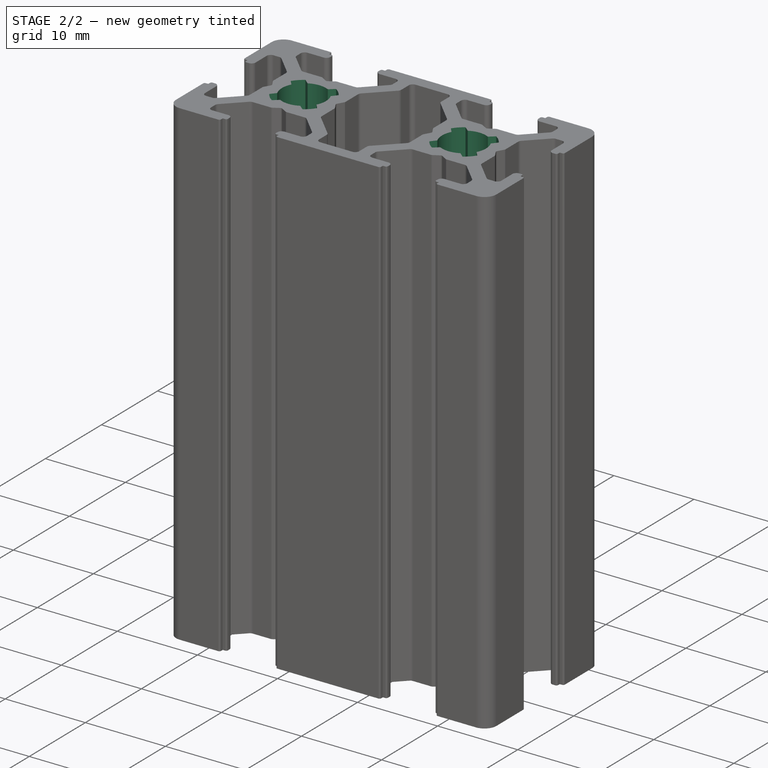
[diagram: stage 2 of 2 — iso view after this stage's code; geometry added in this stage tinted green]
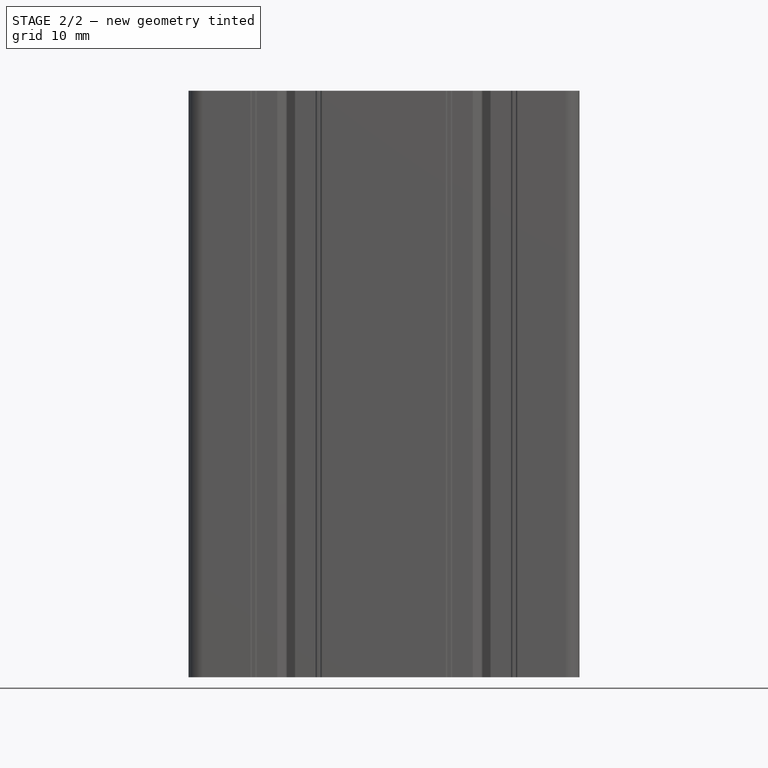
[diagram: stage 2 of 2 — front view after this stage's code; geometry added in this stage tinted green]
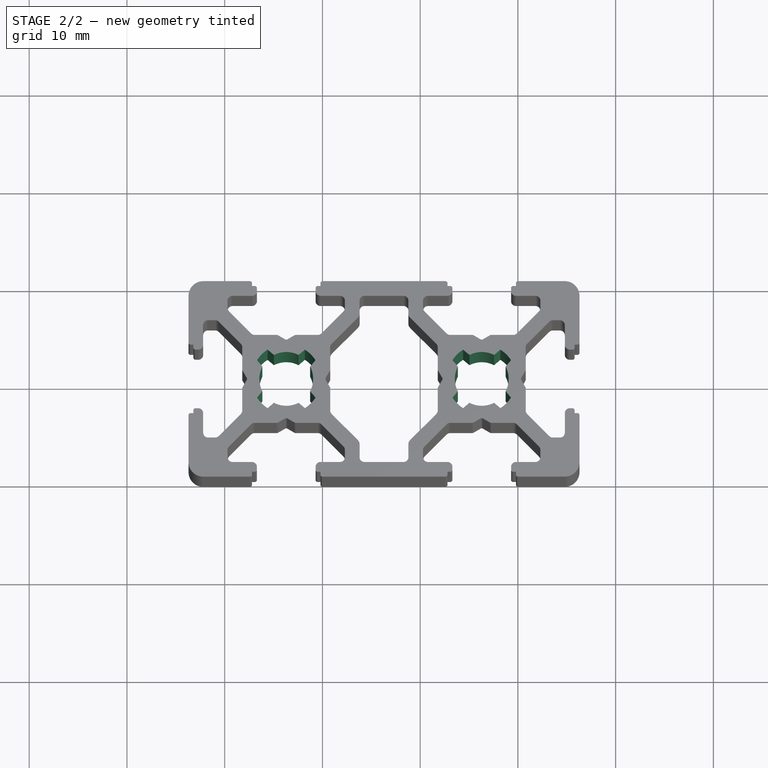
[diagram: stage 2 of 2 — top view after this stage's code; geometry added in this stage tinted green]
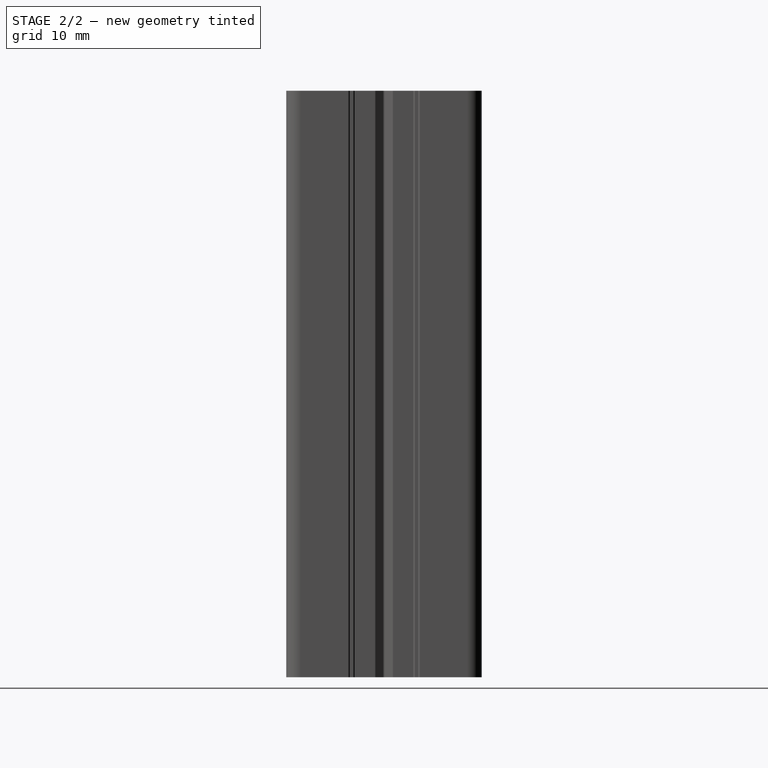
[diagram: stage 2 of 2 — right view after this stage's code; geometry added in this stage tinted green]
FEATURE [Sketcher::SketchObject] Sketch002
  Placement = pos=(0,0,60) rot=(0,0,1;0rad)
  Support = -> Pocket [Face5]
  sketch-geometry (16):
    g0: ArcOfCircle CenterX=-3.7 CenterY=10 CenterZ=0 NormalX=0 NormalY=0 NormalZ=1 Radius=3.54978 StartAngle=3.71103 EndAngle=4.14428
    g1: LineSegment StartX=-6.68964 StartY=8.0861 StartZ=0 EndX=-6.14529 EndY=8.74181 EndZ=0
    g2: ArcOfCircle CenterX=-3.7 CenterY=10 CenterZ=0 NormalX=0 NormalY=0 NormalZ=1 Radius=2.75 StartAngle=2.66639 EndAngle=3.6168
    g3: LineSegment StartX=-6.14529 StartY=11.2582 StartZ=0 EndX=-6.68964 EndY=11.9139 EndZ=0
    g4: ArcOfCircle CenterX=-3.7 CenterY=10 CenterZ=0 NormalX=0 NormalY=0 NormalZ=1 Radius=3.54978 StartAngle=2.13891 EndAngle=2.57215
    g5: LineSegment StartX=-5.60993 StartY=12.9922 StartZ=0 EndX=-4.95818 EndY=12.4453 EndZ=0
    g6: ArcOfCircle CenterX=-3.7 CenterY=10 CenterZ=0 NormalX=0 NormalY=0 NormalZ=1 Radius=2.75 StartAngle=1.09559 EndAngle=2.046
    g7: LineSegment StartX=-2.44181 StartY=12.4453 StartZ=0 EndX=-1.79007 EndY=12.9922 EndZ=0
    g8: ArcOfCircle CenterX=-3.7 CenterY=10 CenterZ=0 NormalX=0 NormalY=0 NormalZ=1 Radius=3.54978 StartAngle=0.569438 EndAngle=1.00268
    g9: LineSegment StartX=-0.710359 StartY=11.9139 StartZ=0 EndX=-1.2547 EndY=11.2582 EndZ=0
    g10: ArcOfCircle CenterX=-3.7 CenterY=10 CenterZ=0 NormalX=0 NormalY=0 NormalZ=1 Radius=2.75 StartAngle=5.80798 EndAngle=6.75839
    g11: LineSegment StartX=-1.2547 StartY=8.74181 StartZ=0 EndX=-0.710359 EndY=8.0861 EndZ=0
    g12: ArcOfCircle CenterX=-3.7 CenterY=10 CenterZ=0 NormalX=0 NormalY=0 NormalZ=1 Radius=3.54978 StartAngle=5.2805 EndAngle=5.71375
    g13: LineSegment StartX=-1.79007 StartY=7.00783 StartZ=0 EndX=-2.44181 EndY=7.5547 EndZ=0
    g14: ArcOfCircle CenterX=-3.7 CenterY=10 CenterZ=0 NormalX=0 NormalY=0 NormalZ=1 Radius=2.75 StartAngle=4.23718 EndAngle=5.1876
    g15: LineSegment StartX=-4.95818 StartY=7.5547 StartZ=0 EndX=-5.60993 EndY=7.00783 EndZ=0
  constraints (16):
    c: Coincident(g0,g1)
    c: Coincident(g15,g0)
    c: Coincident(g1,g2)
    c: Coincident(g2,g3)
    c: Coincident(g3,g4)
    c: Coincident(g4,g5)
    c: Coincident(g5,g6)
    c: Coincident(g6,g7)
    c: Coincident(g8,g7)
    c: Coincident(g9,g8)
    c: Coincident(g9,g10)
    c: Coincident(g10,g11)
    c: Coincident(g11,g12)
    c: Coincident(g12,g13)
    c: Coincident(g14,g13)
    c: Coincident(g15,g14)
FEATURE [PartDesign::Pocket] Pocket001
  Length = 5
  Sketch = -> Sketch002
  Type = 1
FEATURE [Sketcher::SketchObject] Sketch003
  Placement = pos=(0,0,60) rot=(0,0,1;0rad)
  Support = -> Pocket001 [Face5]
  sketch-geometry (16):
    g0: ArcOfCircle CenterX=16.3 CenterY=10 CenterZ=0 NormalX=0 NormalY=0 NormalZ=1 Radius=3.54978 StartAngle=3.71103 EndAngle=4.14428
    g1: LineSegment StartX=13.3104 StartY=8.0861 StartZ=0 EndX=13.8547 EndY=8.74181 EndZ=0
    g2: ArcOfCircle CenterX=16.3 CenterY=10 CenterZ=0 NormalX=0 NormalY=0 NormalZ=1 Radius=2.75 StartAngle=2.66639 EndAngle=3.6168
    g3: LineSegment StartX=13.8547 StartY=11.2582 StartZ=0 EndX=13.3104 EndY=11.9139 EndZ=0
    g4: ArcOfCircle CenterX=16.3 CenterY=10 CenterZ=0 NormalX=0 NormalY=0 NormalZ=1 Radius=3.54978 StartAngle=2.13891 EndAngle=2.57215
    g5: LineSegment StartX=14.3901 StartY=12.9922 StartZ=0 EndX=15.0418 EndY=12.4453 EndZ=0
    g6: ArcOfCircle CenterX=16.3 CenterY=10 CenterZ=0 NormalX=0 NormalY=0 NormalZ=1 Radius=2.75 StartAngle=1.09559 EndAngle=2.046
    g7: LineSegment StartX=17.5582 StartY=12.4453 StartZ=0 EndX=18.2099 EndY=12.9922 EndZ=0
    g8: ArcOfCircle CenterX=16.3 CenterY=10 CenterZ=0 NormalX=0 NormalY=0 NormalZ=1 Radius=3.54978 StartAngle=0.569438 EndAngle=1.00268
    g9: LineSegment StartX=19.2896 StartY=11.9139 StartZ=0 EndX=18.7453 EndY=11.2582 EndZ=0
    g10: ArcOfCircle CenterX=16.3 CenterY=10 CenterZ=0 NormalX=0 NormalY=0 NormalZ=1 Radius=2.75 StartAngle=5.80798 EndAngle=6.75839
    g11: LineSegment StartX=18.7453 StartY=8.74181 StartZ=0 EndX=19.2896 EndY=8.0861 EndZ=0
    g12: ArcOfCircle CenterX=16.3 CenterY=10 CenterZ=0 NormalX=0 NormalY=0 NormalZ=1 Radius=3.54978 StartAngle=5.2805 EndAngle=5.71375
    g13: LineSegment StartX=18.2099 StartY=7.00783 StartZ=0 EndX=17.5582 EndY=7.5547 EndZ=0
    g14: ArcOfCircle CenterX=16.3 CenterY=10 CenterZ=0 NormalX=0 NormalY=0 NormalZ=1 Radius=2.75 StartAngle=4.23718 EndAngle=5.1876
    g15: LineSegment StartX=15.0418 StartY=7.5547 StartZ=0 EndX=14.3901 EndY=7.00783 EndZ=0
  constraints (16):
    c: Coincident(g0,g1)
    c: Coincident(g15,g0)
    c: Coincident(g1,g2)
    c: Coincident(g2,g3)
    c: Coincident(g3,g4)
    c: Coincident(g4,g5)
    c: Coincident(g5,g6)
    c: Coincident(g6,g7)
    c: Coincident(g8,g7)
    c: Coincident(g9,g8)
    c: Coincident(g9,g10)
    c: Coincident(g10,g11)
    c: Coincident(g11,g12)
    c: Coincident(g12,g13)
    c: Coincident(g14,g13)
    c: Coincident(g15,g14)
FEATURE [PartDesign::Pocket] Pocket002
  Length = 5
  Sketch = -> Sketch003
  Type = 1
FEATURE [Part::Feature] Pocket002001  label="brazo_vertical"
  shape: bbox 40 x 20 x 60 mm, 270 faces (baked)
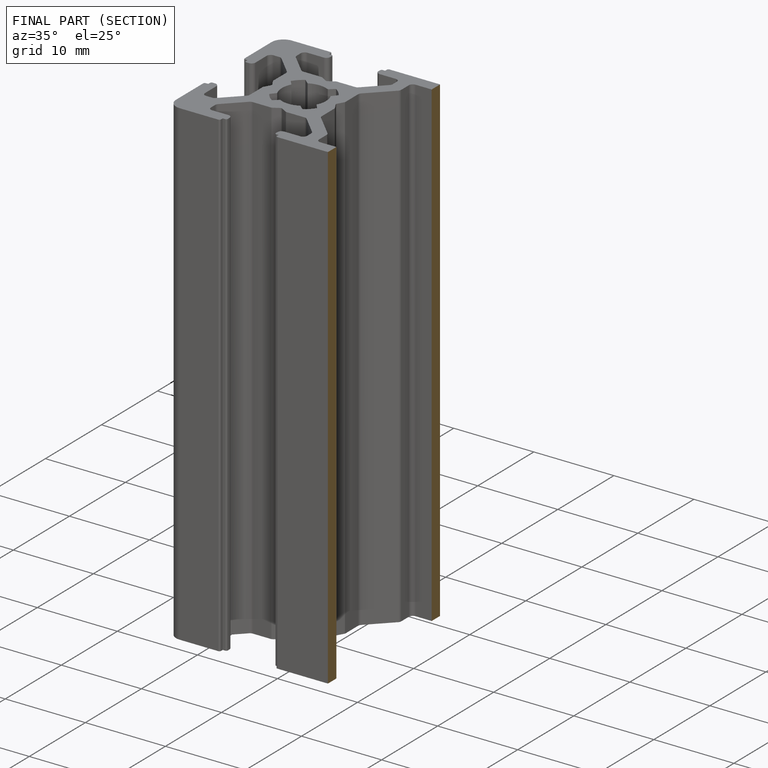
[diagram: finished part — half-section view (interior)]
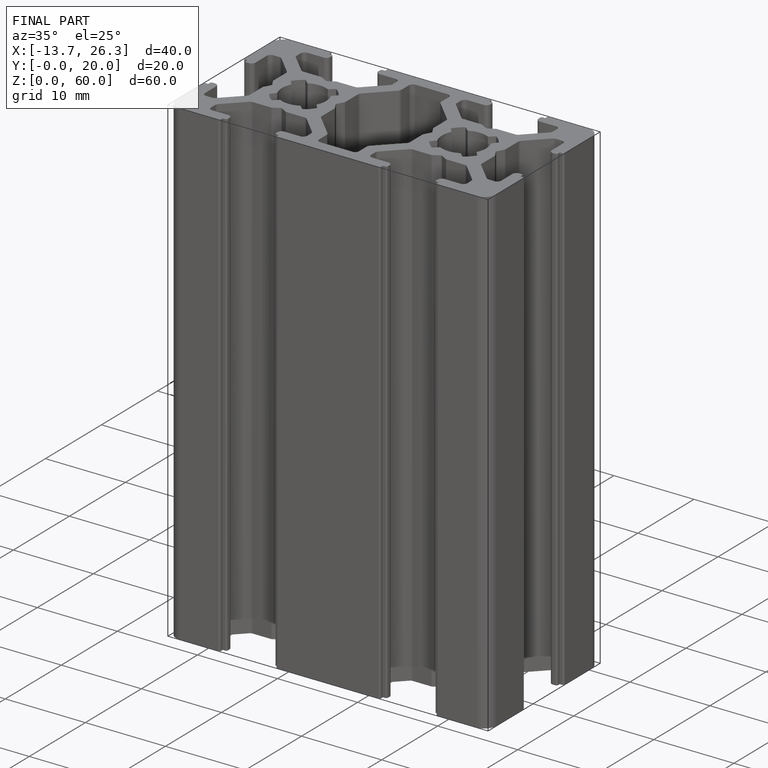
[diagram: finished part — iso view with bounding-box wireframe]
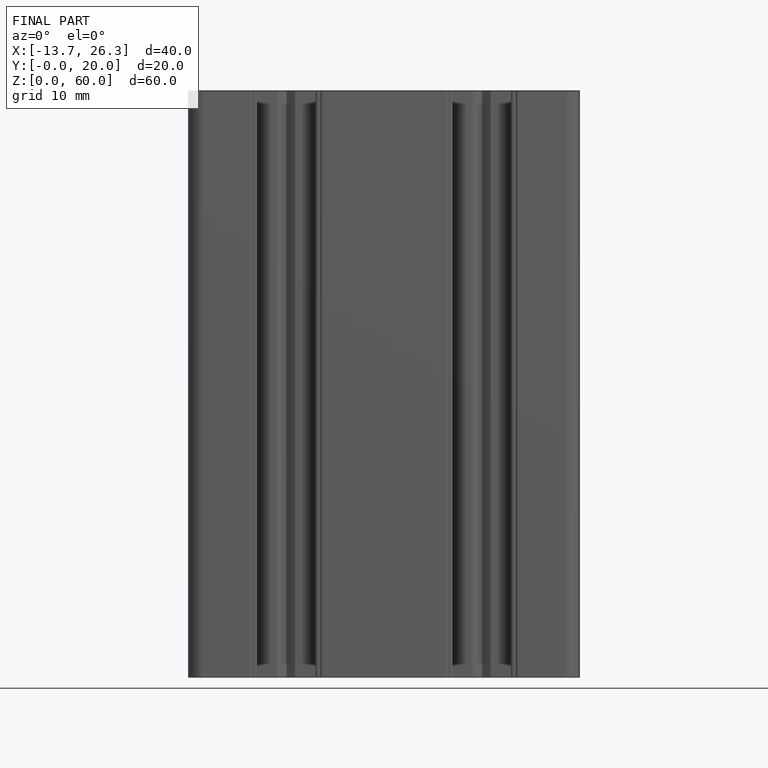
[diagram: finished part — front view with bounding-box wireframe]
